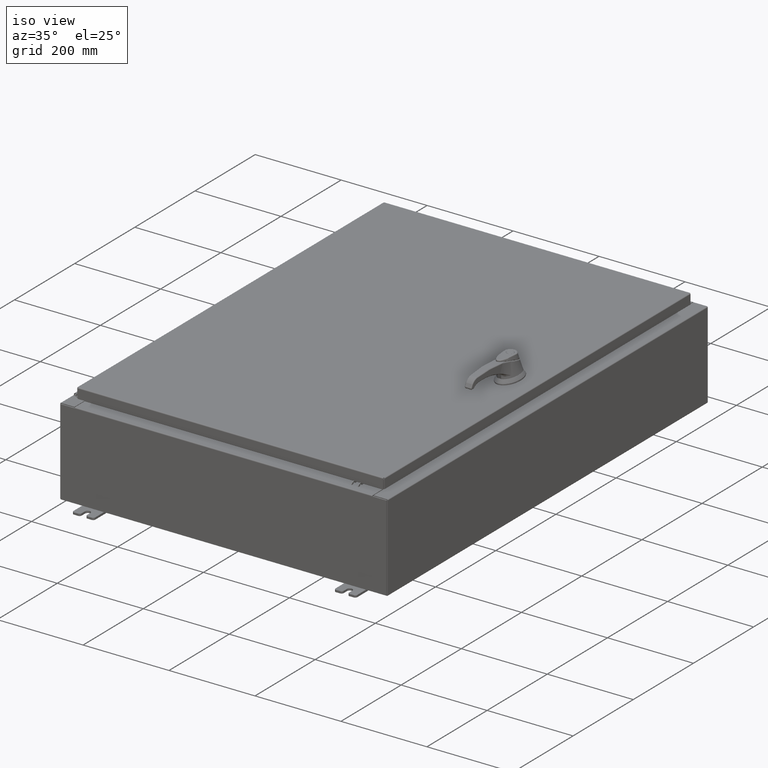
[diagram: clean part render]
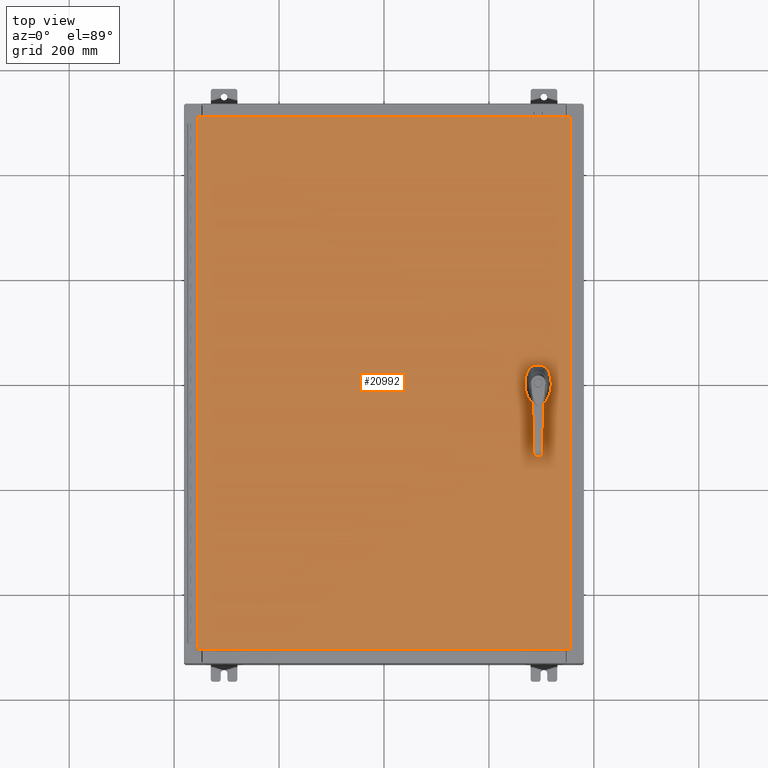
[diagram: tour spotlight — one face highlighted and labeled with its STEP entity id]
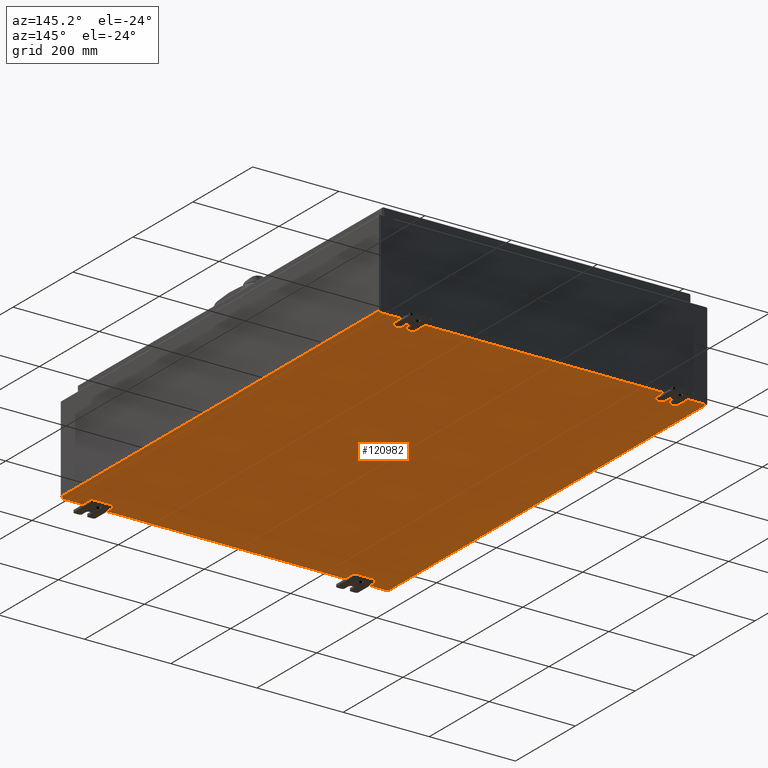
[diagram: tour spotlight — one face highlighted and labeled with its STEP entity id]
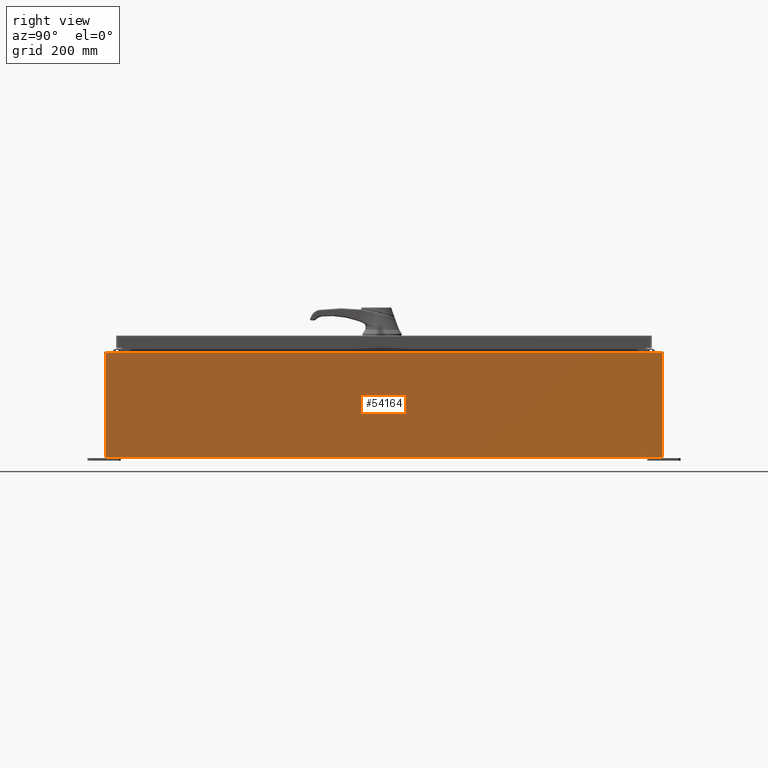
[diagram: tour spotlight — one face highlighted and labeled with its STEP entity id]
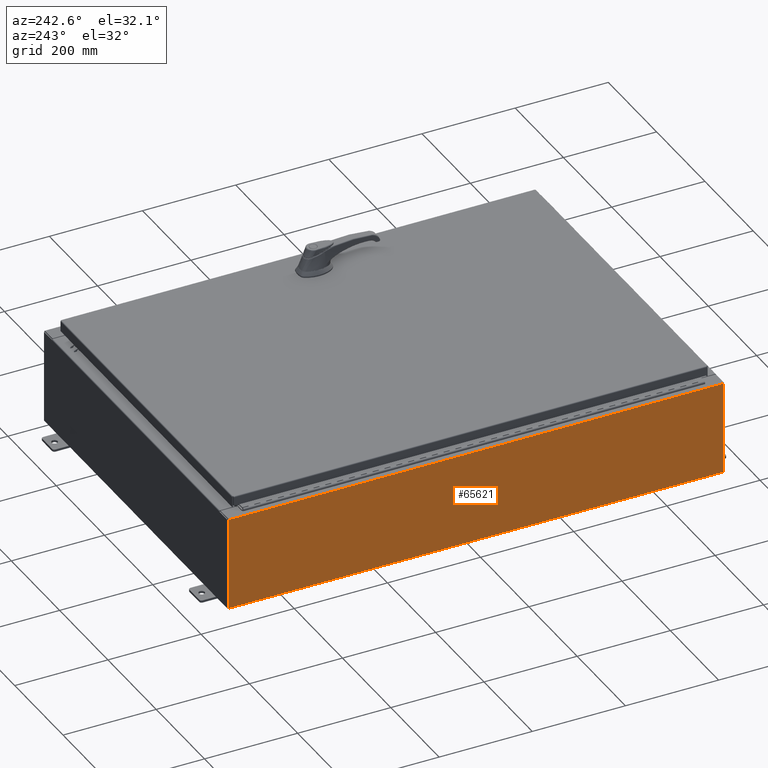
[diagram: tour spotlight — one face highlighted and labeled with its STEP entity id]
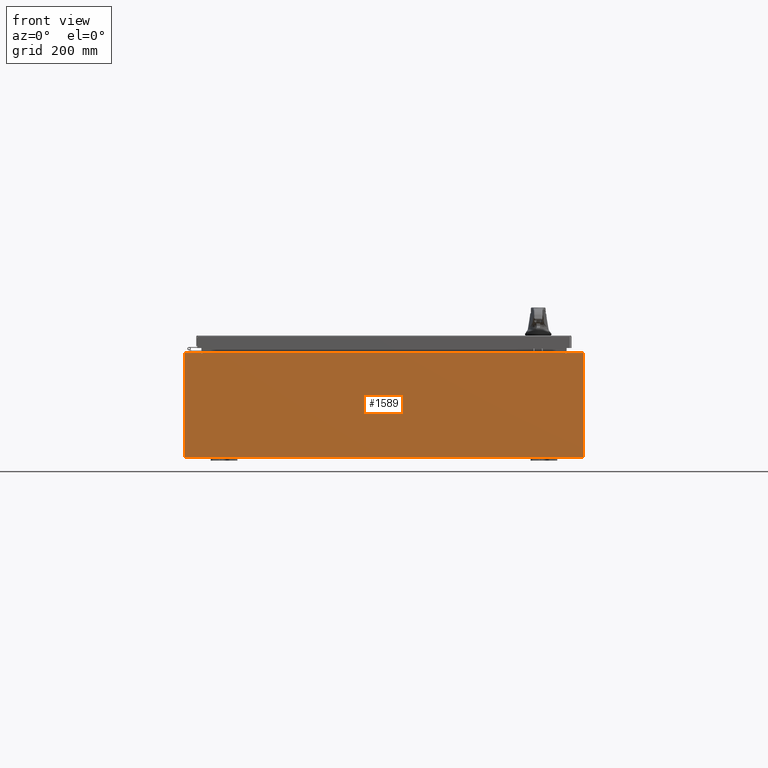
[diagram: tour spotlight — one face highlighted and labeled with its STEP entity id]
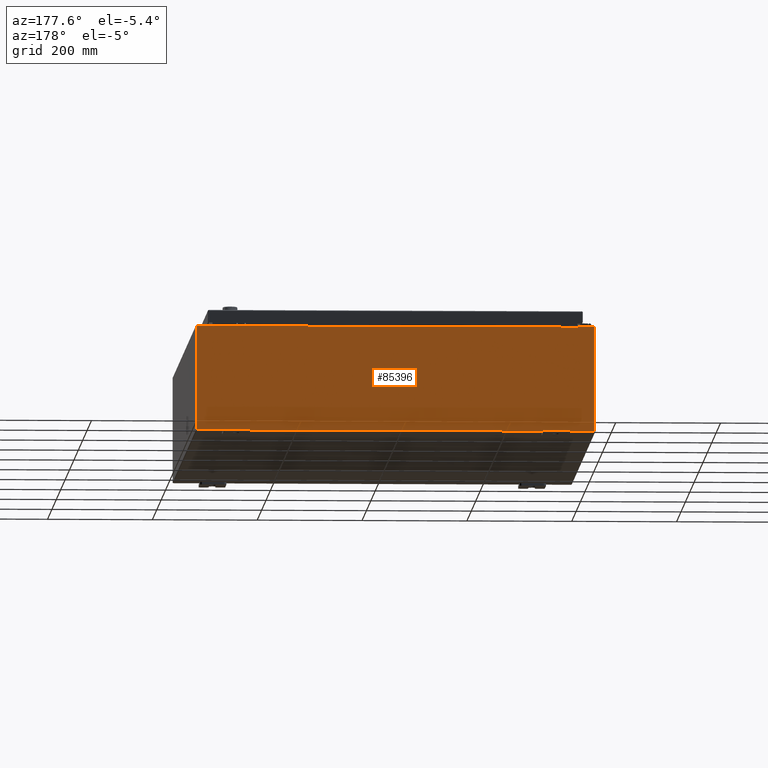
[diagram: tour spotlight — one face highlighted and labeled with its STEP entity id]
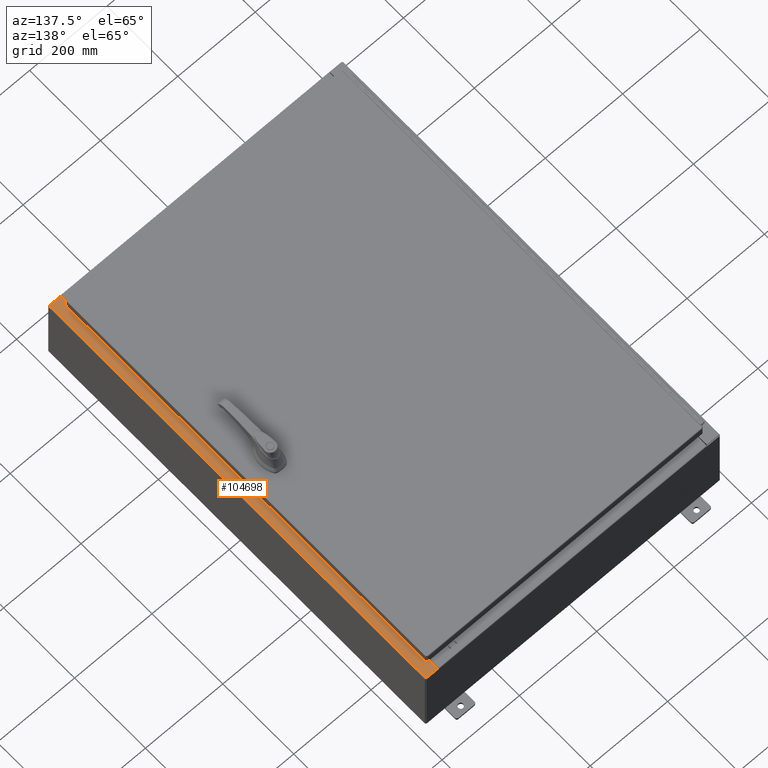
[diagram: tour spotlight — one face highlighted and labeled with its STEP entity id]
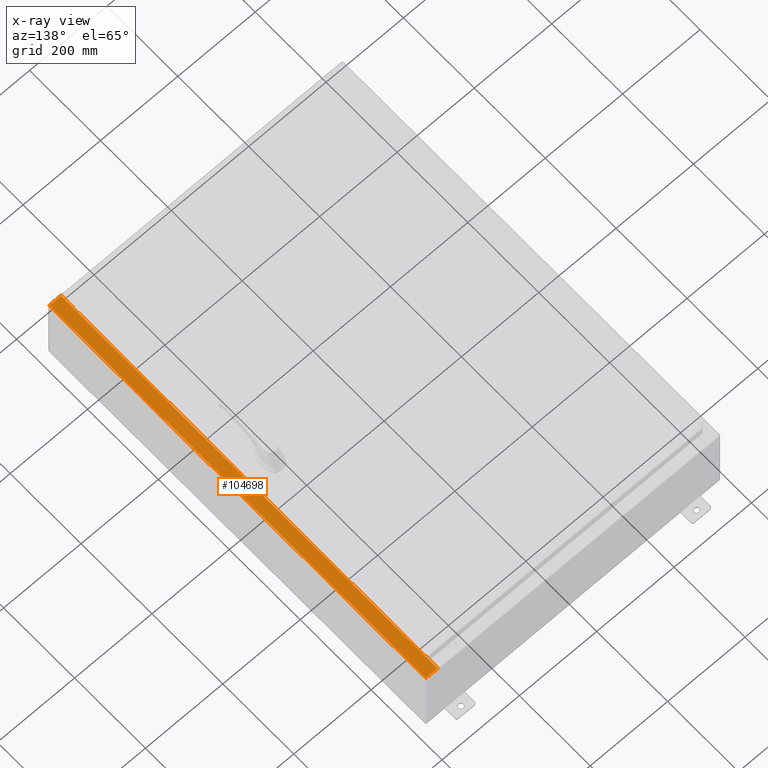
[diagram: x-ray of the same camera — body ghosted, this tour face saturated]
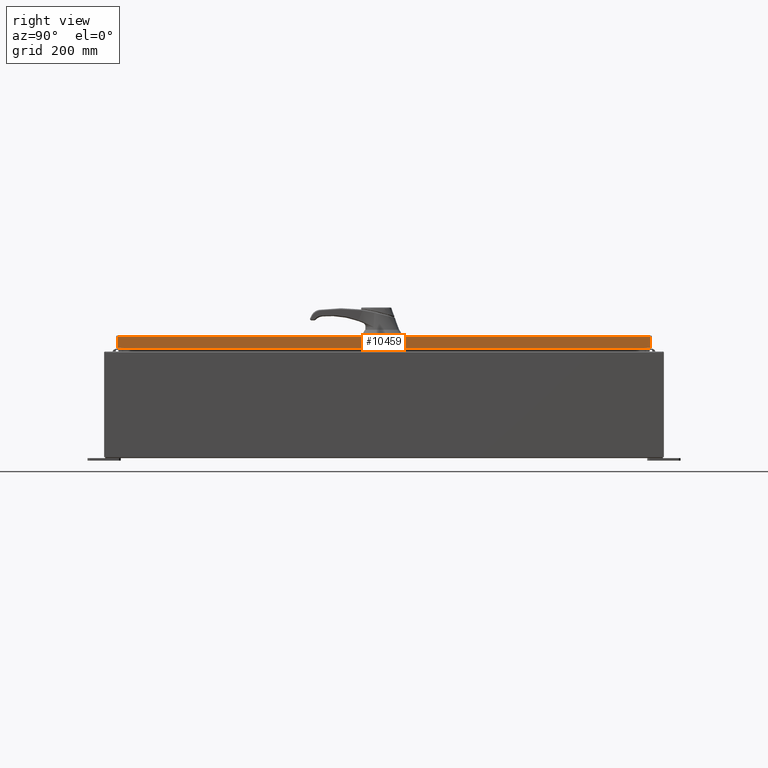
[diagram: tour spotlight — one face highlighted and labeled with its STEP entity id]
A machine part: a face-by-face anatomy tour. The part has 3038 B-rep faces; the first image is the clean iso view, then the 8 largest visible faces are spotlighted one at a time (largest first), each with its STEP entity span.

Face 1 — top view, entity #20992. In plain terms, the highlighted planar face has unit normal (0, 0, -1).
Definition (entity closure, byte-faithful):
#713 = VECTOR ( 'NONE', #93508, 39.37007874015748100 ) ;
#1416 = LINE ( 'NONE', #23178, #80802 ) ;
#4065 = CARTESIAN_POINT ( 'NONE',  ( 11.17500000000007500, 0.0000000000000000000, 0.0000000000000000000 ) ) ;
#5549 = ORIENTED_EDGE ( 'NONE', *, *, #27456, .T. ) ;
#6065 = CARTESIAN_POINT ( 'NONE',  ( 11.57800000000000100, -1.338000000000000100, 0.0000000000000000000 ) ) ;
#9464 = CARTESIAN_POINT ( 'NONE',  ( 13.99030000000000100, 20.00630000000000700, 1.946441695485787500E-015 ) ) ;
#10059 = EDGE_CURVE ( 'NONE', #40510, #10785, #1416, .T. ) ;
#10197 = ORIENTED_EDGE ( 'NONE', *, *, #92393, .F. ) ;
#10240 = DIRECTION ( 'NONE',  ( -0.0000000000000000000, 0.0000000000000000000, 1.000000000000000000 ) ) ;
#10785 = VERTEX_POINT ( 'NONE', #68067 ) ;
#10881 = CARTESIAN_POINT ( 'NONE',  ( 11.74950000000000300, -1.338000000000000100, 0.0000000000000000000 ) ) ;
#11727 = ORIENTED_EDGE ( 'NONE', *, *, #112714, .F. ) ;
#13587 = CARTESIAN_POINT ( 'NONE',  ( 11.17500000000007500, 0.2002273707563079800, 0.0000000000000000000 ) ) ;
#13602 = CARTESIAN_POINT ( 'NONE',  ( 11.57800000000000100, 0.0000000000000000000, 0.0000000000000000000 ) ) ;
#14846 = ORIENTED_EDGE ( 'NONE', *, *, #34380, .T. ) ;
#16079 = DIRECTION ( 'NONE',  ( 1.000000000000000000, 0.0000000000000000000, 0.0000000000000000000 ) ) ;
#17388 = VERTEX_POINT ( 'NONE', #49602 ) ;
#18211 = CARTESIAN_POINT ( 'NONE',  ( 11.37777262924369200, -0.4029999999999252000, 0.0000000000000000000 ) ) ;
#18451 = AXIS2_PLACEMENT_3D ( 'NONE', #13602, #83114, #23724 ) ;
#18954 = CARTESIAN_POINT ( 'NONE',  ( 11.98099999999993100, -0.2002273707563079800, 0.0000000000000000000 ) ) ;
#19039 = VERTEX_POINT ( 'NONE', #33135 ) ;
#20043 = LINE ( 'NONE', #81543, #49696 ) ;
#20165 = ORIENTED_EDGE ( 'NONE', *, *, #52635, .F. ) ;
#20211 = ORIENTED_EDGE ( 'NONE', *, *, #37385, .F. ) ;
#20380 = VERTEX_POINT ( 'NONE', #75636 ) ;
#20992 = ADVANCED_FACE ( 'NONE', ( #22618, #125000, #72299 ), #49393, .F. ) ;
#22112 = DIRECTION ( 'NONE',  ( 0.0000000000000000000, 1.000000000000000000, 0.0000000000000000000 ) ) ;
#22618 = FACE_BOUND ( 'NONE', #94614, .T. ) ;
#23178 = CARTESIAN_POINT ( 'NONE',  ( 0.0000000000000000000, 0.4029999999999252000, 0.0000000000000000000 ) ) ;
#23724 = DIRECTION ( 'NONE',  ( 1.000000000000000000, 0.0000000000000000000, 0.0000000000000000000 ) ) ;
#26070 = CIRCLE ( 'NONE', #82155, 0.1715000000000011500 ) ;
#26480 = ORIENTED_EDGE ( 'NONE', *, *, #37617, .F. ) ;
#27418 = EDGE_LOOP ( 'NONE', ( #5549, #43140, #84448, #20165, #26480, #10197, #62876, #20211 ) ) ;
#27456 = EDGE_CURVE ( 'NONE', #79555, #110515, #59068, .T. ) ;
#29096 = CIRCLE ( 'NONE', #113686, 0.4499999999999168000 ) ;
#29190 = CARTESIAN_POINT ( 'NONE',  ( 11.98099999999992900, 6.538620706741755000E-014, 0.0000000000000000000 ) ) ;
#29546 = VERTEX_POINT ( 'NONE', #13587 ) ;
#29744 = VERTEX_POINT ( 'NONE', #10881 ) ;
#29772 = CARTESIAN_POINT ( 'NONE',  ( 13.99030000000000100, -20.00630000000000300, -2.048885995248197400E-016 ) ) ;
#30443 = CARTESIAN_POINT ( 'NONE',  ( 11.57800000000000100, 0.0000000000000000000, 0.0000000000000000000 ) ) ;
#30903 = LINE ( 'NONE', #121697, #80479 ) ;
#33135 = CARTESIAN_POINT ( 'NONE',  ( -13.99029999999999800, -20.00630000000001000, 1.946441695485787500E-015 ) ) ;
#33560 = DIRECTION ( 'NONE',  ( -0.0000000000000000000, 0.0000000000000000000, 1.000000000000000000 ) ) ;
#34380 = EDGE_CURVE ( 'NONE', #56203, #20380, #20043, .T. ) ;
#36805 = VERTEX_POINT ( 'NONE', #110417 ) ;
#37385 = EDGE_CURVE ( 'NONE', #79555, #40510, #95541, .T. ) ;
#37617 = EDGE_CURVE ( 'NONE', #29546, #100435, #53799, .T. ) ;
#39242 = CARTESIAN_POINT ( 'NONE',  ( 11.77822737075631200, 0.4029999999999252000, 0.0000000000000000000 ) ) ;
#40414 = DIRECTION ( 'NONE',  ( 1.000000000000000000, 0.0000000000000000000, 0.0000000000000000000 ) ) ;
#40510 = VERTEX_POINT ( 'NONE', #39242 ) ;
#43140 = ORIENTED_EDGE ( 'NONE', *, *, #110619, .F. ) ;
#43217 = DIRECTION ( 'NONE',  ( -1.000000000000000000, 0.0000000000000000000, 0.0000000000000000000 ) ) ;
#43713 = VERTEX_POINT ( 'NONE', #89410 ) ;
#43994 = EDGE_LOOP ( 'NONE', ( #81127, #14846, #80909, #101770 ) ) ;
#45375 = VECTOR ( 'NONE', #59518, 39.37007874015748100 ) ;
#48132 = AXIS2_PLACEMENT_3D ( 'NONE', #69831, #10240, #79785 ) ;
#49393 = PLANE ( 'NONE',  #51897 ) ;
#49602 = CARTESIAN_POINT ( 'NONE',  ( -13.99029999999999800, 20.00630000000000000, -2.048885995248197400E-016 ) ) ;
#49696 = VECTOR ( 'NONE', #22112, 39.37007874015748100 ) ;
#51897 = AXIS2_PLACEMENT_3D ( 'NONE', #98636, #59339, #128620 ) ;
#52635 = EDGE_CURVE ( 'NONE', #100435, #54347, #29096, .T. ) ;
#53799 = LINE ( 'NONE', #4065, #713 ) ;
#54347 = VERTEX_POINT ( 'NONE', #18211 ) ;
#54647 = DIRECTION ( 'NONE',  ( -0.0000000000000000000, 0.0000000000000000000, 1.000000000000000000 ) ) ;
#54681 = DIRECTION ( 'NONE',  ( 1.000000000000000000, -0.0000000000000000000, -0.0000000000000000000 ) ) ;
#56203 = VERTEX_POINT ( 'NONE', #29772 ) ;
#57278 = EDGE_CURVE ( 'NONE', #19039, #56203, #59484, .T. ) ;
#59068 = LINE ( 'NONE', #29190, #108549 ) ;
#59105 = DIRECTION ( 'NONE',  ( 5.457491617345625800E-015, -1.000000000000000000, 0.0000000000000000000 ) ) ;
#59339 = DIRECTION ( 'NONE',  ( 0.0000000000000000000, 0.0000000000000000000, -1.000000000000000000 ) ) ;
#59484 = LINE ( 'NONE', #103953, #108996 ) ;
#59518 = DIRECTION ( 'NONE',  ( -1.000000000000000000, -0.0000000000000000000, -0.0000000000000000000 ) ) ;
#62876 = ORIENTED_EDGE ( 'NONE', *, *, #10059, .F. ) ;
#68067 = CARTESIAN_POINT ( 'NONE',  ( 11.37777262924369200, 0.4029999999999252000, 0.0000000000000000000 ) ) ;
#69831 = CARTESIAN_POINT ( 'NONE',  ( 11.57800000000000100, 0.0000000000000000000, 0.0000000000000000000 ) ) ;
#71305 = CIRCLE ( 'NONE', #98023, 0.4499999999999168000 ) ;
#71669 = LINE ( 'NONE', #9464, #45375 ) ;
#72299 = FACE_BOUND ( 'NONE', #27418, .T. ) ;
#75604 = DIRECTION ( 'NONE',  ( -0.0000000000000000000, 0.0000000000000000000, 1.000000000000000000 ) ) ;
#75636 = CARTESIAN_POINT ( 'NONE',  ( 13.99030000000000100, 20.00630000000000700, 1.946441695485787500E-015 ) ) ;
#79555 = VERTEX_POINT ( 'NONE', #102981 ) ;
#79785 = DIRECTION ( 'NONE',  ( 1.000000000000000000, 0.0000000000000000000, 0.0000000000000000000 ) ) ;
#80479 = VECTOR ( 'NONE', #92194, 39.37007874015748100 ) ;
#80802 = VECTOR ( 'NONE', #43217, 39.37007874015748100 ) ;
#80909 = ORIENTED_EDGE ( 'NONE', *, *, #89678, .T. ) ;
#81127 = ORIENTED_EDGE ( 'NONE', *, *, #57278, .T. ) ;
#81543 = CARTESIAN_POINT ( 'NONE',  ( 13.99030000000000100, -20.00630000000000300, -2.048885995248197400E-016 ) ) ;
#82155 = AXIS2_PLACEMENT_3D ( 'NONE', #6065, #75604, #16079 ) ;
#83114 = DIRECTION ( 'NONE',  ( -0.0000000000000000000, 0.0000000000000000000, 1.000000000000000000 ) ) ;
#84448 = ORIENTED_EDGE ( 'NONE', *, *, #121474, .F. ) ;
#89410 = CARTESIAN_POINT ( 'NONE',  ( 11.77822737075631200, -0.4029999999999252000, 0.0000000000000000000 ) ) ;
#89656 = CIRCLE ( 'NONE', #101609, 0.1715000000000011500 ) ;
#89678 = EDGE_CURVE ( 'NONE', #20380, #17388, #71669, .T. ) ;
#91428 = ORIENTED_EDGE ( 'NONE', *, *, #121913, .F. ) ;
#92194 = DIRECTION ( 'NONE',  ( 1.000000000000000000, 0.0000000000000000000, 0.0000000000000000000 ) ) ;
#92393 = EDGE_CURVE ( 'NONE', #10785, #29546, #71305, .T. ) ;
#92799 = CARTESIAN_POINT ( 'NONE',  ( 11.57800000000000100, -1.338000000000000100, 0.0000000000000000000 ) ) ;
#93508 = DIRECTION ( 'NONE',  ( 0.0000000000000000000, -1.000000000000000000, 0.0000000000000000000 ) ) ;
#94614 = EDGE_LOOP ( 'NONE', ( #91428, #11727 ) ) ;
#95541 = CIRCLE ( 'NONE', #48132, 0.4499999999999168000 ) ;
#97161 = VECTOR ( 'NONE', #106594, 39.37007874015748100 ) ;
#98023 = AXIS2_PLACEMENT_3D ( 'NONE', #30443, #99627, #40414 ) ;
#98636 = CARTESIAN_POINT ( 'NONE',  ( 0.0000000000000000000, 0.0000000000000000000, 0.0000000000000000000 ) ) ;
#99627 = DIRECTION ( 'NONE',  ( -0.0000000000000000000, 0.0000000000000000000, 1.000000000000000000 ) ) ;
#100435 = VERTEX_POINT ( 'NONE', #104602 ) ;
#101609 = AXIS2_PLACEMENT_3D ( 'NONE', #92799, #33560, #102710 ) ;
#101770 = ORIENTED_EDGE ( 'NONE', *, *, #108238, .T. ) ;
#102710 = DIRECTION ( 'NONE',  ( 1.000000000000000000, 0.0000000000000000000, 0.0000000000000000000 ) ) ;
#102981 = CARTESIAN_POINT ( 'NONE',  ( 11.98099999999992900, 0.2002273707563075900, 0.0000000000000000000 ) ) ;
#103953 = CARTESIAN_POINT ( 'NONE',  ( -13.99029999999999800, -20.00630000000001000, 1.946441695485787500E-015 ) ) ;
#104602 = CARTESIAN_POINT ( 'NONE',  ( 11.17500000000007500, -0.2002273707563079800, 0.0000000000000000000 ) ) ;
#106594 = DIRECTION ( 'NONE',  ( 0.0000000000000000000, -1.000000000000000000, 0.0000000000000000000 ) ) ;
#108238 = EDGE_CURVE ( 'NONE', #17388, #19039, #120545, .T. ) ;
#108549 = VECTOR ( 'NONE', #59105, 39.37007874015748100 ) ;
#108996 = VECTOR ( 'NONE', #54681, 39.37007874015748100 ) ;
#110417 = CARTESIAN_POINT ( 'NONE',  ( 11.40650000000000100, -1.338000000000000100, 0.0000000000000000000 ) ) ;
#110515 = VERTEX_POINT ( 'NONE', #18954 ) ;
#110619 = EDGE_CURVE ( 'NONE', #43713, #110515, #126348, .T. ) ;
#112714 = EDGE_CURVE ( 'NONE', #36805, #29744, #89656, .T. ) ;
#113686 = AXIS2_PLACEMENT_3D ( 'NONE', #113936, #54647, #123919 ) ;
#113936 = CARTESIAN_POINT ( 'NONE',  ( 11.57800000000000100, 0.0000000000000000000, 0.0000000000000000000 ) ) ;
#120545 = LINE ( 'NONE', #126197, #97161 ) ;
#121474 = EDGE_CURVE ( 'NONE', #54347, #43713, #30903, .T. ) ;
#121697 = CARTESIAN_POINT ( 'NONE',  ( 0.0000000000000000000, -0.4029999999999252000, 0.0000000000000000000 ) ) ;
#121913 = EDGE_CURVE ( 'NONE', #29744, #36805, #26070, .T. ) ;
#123919 = DIRECTION ( 'NONE',  ( 1.000000000000000000, 0.0000000000000000000, 0.0000000000000000000 ) ) ;
#125000 = FACE_OUTER_BOUND ( 'NONE', #43994, .T. ) ;
#126197 = CARTESIAN_POINT ( 'NONE',  ( -13.99029999999999800, 20.00630000000000300, -2.048885995248197400E-016 ) ) ;
#126348 = CIRCLE ( 'NONE', #18451, 0.4499999999999168000 ) ;
#128620 = DIRECTION ( 'NONE',  ( -1.000000000000000000, 0.0000000000000000000, -0.0000000000000000000 ) ) ;

Face 2 — auxiliary view, entity #120982. In plain terms, the highlighted planar face has unit normal (0, 0, -1).
Definition (entity closure, byte-faithful):
#6310 = DIRECTION ( 'NONE',  ( -1.000000000000000000, 0.0000000000000000000, -0.0000000000000000000 ) ) ;
#6561 = LINE ( 'NONE', #115595, #59569 ) ;
#19580 = VECTOR ( 'NONE', #67871, 39.37007874015748100 ) ;
#21878 = EDGE_LOOP ( 'NONE', ( #64592, #79471, #118921, #54975 ) ) ;
#31516 = CARTESIAN_POINT ( 'NONE',  ( 14.91230000000000200, -20.92529999999999600, -0.07470000000000000300 ) ) ;
#33068 = VERTEX_POINT ( 'NONE', #118293 ) ;
#36048 = DIRECTION ( 'NONE',  ( 0.0000000000000000000, 0.0000000000000000000, -1.000000000000000000 ) ) ;
#36695 = LINE ( 'NONE', #119528, #112614 ) ;
#39096 = CARTESIAN_POINT ( 'NONE',  ( -14.91229999999999800, -20.92529999999998600, -0.07469999999999994700 ) ) ;
#46342 = DIRECTION ( 'NONE',  ( -0.0000000000000000000, -1.000000000000000000, -8.208677865577646300E-017 ) ) ;
#47252 = AXIS2_PLACEMENT_3D ( 'NONE', #115295, #36048, #6310 ) ;
#54975 = ORIENTED_EDGE ( 'NONE', *, *, #85873, .T. ) ;
#55715 = FACE_OUTER_BOUND ( 'NONE', #21878, .T. ) ;
#57431 = EDGE_CURVE ( 'NONE', #75915, #115806, #126064, .T. ) ;
#59569 = VECTOR ( 'NONE', #46342, 39.37007874015748100 ) ;
#64592 = ORIENTED_EDGE ( 'NONE', *, *, #57431, .F. ) ;
#67871 = DIRECTION ( 'NONE',  ( -1.000000000000000000, -0.0000000000000000000, -0.0000000000000000000 ) ) ;
#72413 = LINE ( 'NONE', #127244, #19580 ) ;
#75915 = VERTEX_POINT ( 'NONE', #39096 ) ;
#79471 = ORIENTED_EDGE ( 'NONE', *, *, #123659, .T. ) ;
#80110 = DIRECTION ( 'NONE',  ( -0.0000000000000000000, 1.000000000000000000, -0.0000000000000000000 ) ) ;
#84767 = CARTESIAN_POINT ( 'NONE',  ( -14.91229999999999800, 20.92530000000000700, -0.07470000000000000300 ) ) ;
#85762 = DIRECTION ( 'NONE',  ( 1.000000000000000000, -1.456985596620940400E-016, 0.0000000000000000000 ) ) ;
#85873 = EDGE_CURVE ( 'NONE', #33068, #115806, #6561, .T. ) ;
#99637 = VECTOR ( 'NONE', #85762, 39.37007874015748100 ) ;
#112614 = VECTOR ( 'NONE', #80110, 39.37007874015748100 ) ;
#114100 = VERTEX_POINT ( 'NONE', #84767 ) ;
#115295 = CARTESIAN_POINT ( 'NONE',  ( 0.0000000000000000000, 0.0000000000000000000, -0.07470000000000000300 ) ) ;
#115487 = EDGE_CURVE ( 'NONE', #33068, #114100, #72413, .T. ) ;
#115595 = CARTESIAN_POINT ( 'NONE',  ( 14.91230000000000200, 20.92529999999999600, -0.07469999999999714400 ) ) ;
#115806 = VERTEX_POINT ( 'NONE', #31516 ) ;
#118293 = CARTESIAN_POINT ( 'NONE',  ( 14.91230000000000200, 20.92529999999999300, -0.07469999999999714400 ) ) ;
#118921 = ORIENTED_EDGE ( 'NONE', *, *, #115487, .F. ) ;
#119528 = CARTESIAN_POINT ( 'NONE',  ( -14.91229999999999800, -20.92529999999998900, -0.07469999999999994700 ) ) ;
#120982 = ADVANCED_FACE ( 'NONE', ( #55715 ), #125255, .T. ) ;
#123659 = EDGE_CURVE ( 'NONE', #75915, #114100, #36695, .T. ) ;
#125231 = CARTESIAN_POINT ( 'NONE',  ( -14.99999999999999800, -20.92529999999999300, -0.07470000000000000300 ) ) ;
#125255 = PLANE ( 'NONE',  #47252 ) ;
#126064 = LINE ( 'NONE', #125231, #99637 ) ;
#127244 = CARTESIAN_POINT ( 'NONE',  ( -14.99999999999999800, 20.92530000000000700, -0.07470000000000000300 ) ) ;

Face 3 — right view, entity #54164. In plain terms, the highlighted planar face has unit normal (-1, 0, 0).
Definition (entity closure, byte-faithful):
#5526 = CARTESIAN_POINT ( 'NONE',  ( 15.00000000000000400, -20.92529999999998900, 0.01299999999999920500 ) ) ;
#7124 = CARTESIAN_POINT ( 'NONE',  ( 15.00000000000003200, 20.92529999999998900, 7.837599999999999200 ) ) ;
#8816 = VECTOR ( 'NONE', #56535, 39.37007874015748100 ) ;
#10636 = VERTEX_POINT ( 'NONE', #5526 ) ;
#12332 = EDGE_LOOP ( 'NONE', ( #33307, #27964, #76011, #28155 ) ) ;
#12495 = CARTESIAN_POINT ( 'NONE',  ( 15.00000000000000400, -20.92529999999998900, 0.01299999999999984700 ) ) ;
#16761 = CARTESIAN_POINT ( 'NONE',  ( 15.00000000000000400, 20.92529999999999300, 0.01300000000000203200 ) ) ;
#18123 = VECTOR ( 'NONE', #66684, 39.37007874015748100 ) ;
#23183 = EDGE_CURVE ( 'NONE', #67547, #10636, #73675, .T. ) ;
#24011 = PLANE ( 'NONE',  #77273 ) ;
#27964 = ORIENTED_EDGE ( 'NONE', *, *, #94319, .T. ) ;
#28155 = ORIENTED_EDGE ( 'NONE', *, *, #108779, .T. ) ;
#30473 = CARTESIAN_POINT ( 'NONE',  ( 15.00000000000000400, 20.92529999999999600, -5.403395625144963300E-014 ) ) ;
#31827 = DIRECTION ( 'NONE',  ( -1.872056655020411900E-031, -1.000000000000000000, -5.222095728451712300E-017 ) ) ;
#33307 = ORIENTED_EDGE ( 'NONE', *, *, #44581, .T. ) ;
#34090 = DIRECTION ( 'NONE',  ( -1.000000000000000000, 0.0000000000000000000, 3.584876173029202900E-015 ) ) ;
#38527 = LINE ( 'NONE', #95866, #8816 ) ;
#41336 = FACE_OUTER_BOUND ( 'NONE', #12332, .T. ) ;
#44581 = EDGE_CURVE ( 'NONE', #126143, #119961, #47793, .T. ) ;
#47374 = VECTOR ( 'NONE', #31827, 39.37007874015748100 ) ;
#47793 = LINE ( 'NONE', #7124, #18123 ) ;
#54164 = ADVANCED_FACE ( 'NONE', ( #41336 ), #24011, .F. ) ;
#56535 = DIRECTION ( 'NONE',  ( -3.584876173029202900E-015, 0.0000000000000000000, -1.000000000000000000 ) ) ;
#61153 = CARTESIAN_POINT ( 'NONE',  ( 15.00000000000003200, 20.92529999999998600, 7.837599999999999200 ) ) ;
#63102 = LINE ( 'NONE', #30473, #92512 ) ;
#63514 = CARTESIAN_POINT ( 'NONE',  ( 15.00000000000000400, 0.0000000000000000000, -5.403395625144963300E-014 ) ) ;
#66684 = DIRECTION ( 'NONE',  ( -0.0000000000000000000, -1.000000000000000000, -0.0000000000000000000 ) ) ;
#67547 = VERTEX_POINT ( 'NONE', #16761 ) ;
#73675 = LINE ( 'NONE', #12495, #47374 ) ;
#76011 = ORIENTED_EDGE ( 'NONE', *, *, #23183, .F. ) ;
#77273 = AXIS2_PLACEMENT_3D ( 'NONE', #63514, #34090, #103255 ) ;
#92512 = VECTOR ( 'NONE', #119263, 39.37007874015748100 ) ;
#94319 = EDGE_CURVE ( 'NONE', #119961, #10636, #38527, .T. ) ;
#95866 = CARTESIAN_POINT ( 'NONE',  ( 15.00000000000000400, -20.92529999999998900, -5.403395625144963300E-014 ) ) ;
#98492 = CARTESIAN_POINT ( 'NONE',  ( 15.00000000000003200, -20.92529999999998900, 7.837599999999999200 ) ) ;
#103255 = DIRECTION ( 'NONE',  ( 3.584876173029202900E-015, 0.0000000000000000000, 1.000000000000000000 ) ) ;
#108779 = EDGE_CURVE ( 'NONE', #67547, #126143, #63102, .T. ) ;
#119263 = DIRECTION ( 'NONE',  ( 3.584876173029202900E-015, 0.0000000000000000000, 1.000000000000000000 ) ) ;
#119961 = VERTEX_POINT ( 'NONE', #98492 ) ;
#126143 = VERTEX_POINT ( 'NONE', #61153 ) ;

Face 4 — auxiliary view, entity #65621. In plain terms, the highlighted planar face has unit normal (1, 0, 0).
Definition (entity closure, byte-faithful):
#2301 = CARTESIAN_POINT ( 'NONE',  ( -14.99999999999999800, -20.92529999999998600, 0.01299999999999984700 ) ) ;
#3256 = ORIENTED_EDGE ( 'NONE', *, *, #64699, .F. ) ;
#6022 = VECTOR ( 'NONE', #67530, 39.37007874015748100 ) ;
#8264 = VECTOR ( 'NONE', #77882, 39.37007874015748100 ) ;
#21747 = DIRECTION ( 'NONE',  ( -3.584876173029202900E-015, 0.0000000000000000000, 1.000000000000000000 ) ) ;
#30991 = CARTESIAN_POINT ( 'NONE',  ( -14.99999999999999800, 20.92530000000000700, 0.01299999999999983600 ) ) ;
#31523 = CARTESIAN_POINT ( 'NONE',  ( -15.00000000000002700, -20.92529999999998600, 7.837599999999999200 ) ) ;
#38849 = DIRECTION ( 'NONE',  ( 1.000000000000000000, 0.0000000000000000000, 3.584876173029202900E-015 ) ) ;
#39777 = AXIS2_PLACEMENT_3D ( 'NONE', #78235, #38849, #108031 ) ;
#48924 = EDGE_CURVE ( 'NONE', #80094, #56911, #107577, .T. ) ;
#51381 = ORIENTED_EDGE ( 'NONE', *, *, #91207, .T. ) ;
#53306 = CARTESIAN_POINT ( 'NONE',  ( -14.99999999999999800, 20.92530000000000700, -5.403395625144962100E-014 ) ) ;
#56911 = VERTEX_POINT ( 'NONE', #99266 ) ;
#64699 = EDGE_CURVE ( 'NONE', #69915, #99602, #85291, .T. ) ;
#65621 = ADVANCED_FACE ( 'NONE', ( #79027 ), #88156, .F. ) ;
#67530 = DIRECTION ( 'NONE',  ( -0.0000000000000000000, 1.000000000000000000, -0.0000000000000000000 ) ) ;
#69915 = VERTEX_POINT ( 'NONE', #2301 ) ;
#72668 = LINE ( 'NONE', #110595, #122288 ) ;
#77882 = DIRECTION ( 'NONE',  ( 0.0000000000000000000, 1.000000000000000000, 0.0000000000000000000 ) ) ;
#78235 = CARTESIAN_POINT ( 'NONE',  ( -14.99999999999999800, 0.0000000000000000000, -5.403395625144962100E-014 ) ) ;
#78920 = EDGE_CURVE ( 'NONE', #69915, #80094, #72668, .T. ) ;
#79027 = FACE_OUTER_BOUND ( 'NONE', #81440, .T. ) ;
#80094 = VERTEX_POINT ( 'NONE', #31523 ) ;
#81440 = EDGE_LOOP ( 'NONE', ( #91458, #51381, #3256, #96084 ) ) ;
#83850 = VECTOR ( 'NONE', #93049, 39.37007874015748100 ) ;
#85291 = LINE ( 'NONE', #126913, #6022 ) ;
#88156 = PLANE ( 'NONE',  #39777 ) ;
#91207 = EDGE_CURVE ( 'NONE', #56911, #99602, #110184, .T. ) ;
#91458 = ORIENTED_EDGE ( 'NONE', *, *, #48924, .T. ) ;
#93049 = DIRECTION ( 'NONE',  ( 3.584876173029202900E-015, 0.0000000000000000000, -1.000000000000000000 ) ) ;
#96084 = ORIENTED_EDGE ( 'NONE', *, *, #78920, .T. ) ;
#99266 = CARTESIAN_POINT ( 'NONE',  ( -15.00000000000002700, 20.92530000000000700, 7.837599999999999200 ) ) ;
#99602 = VERTEX_POINT ( 'NONE', #30991 ) ;
#107577 = LINE ( 'NONE', #127261, #8264 ) ;
#108031 = DIRECTION ( 'NONE',  ( 3.584876173029202900E-015, 0.0000000000000000000, -1.000000000000000000 ) ) ;
#110184 = LINE ( 'NONE', #53306, #83850 ) ;
#110595 = CARTESIAN_POINT ( 'NONE',  ( -14.99999999999999800, -20.92529999999999300, -5.403395625144962100E-014 ) ) ;
#122288 = VECTOR ( 'NONE', #21747, 39.37007874015748100 ) ;
#126913 = CARTESIAN_POINT ( 'NONE',  ( -14.99999999999999800, 20.92530000000000700, 0.01299999999999984700 ) ) ;
#127261 = CARTESIAN_POINT ( 'NONE',  ( -15.00000000000002700, -20.92529999999998900, 7.837599999999999200 ) ) ;

Face 5 — front view, entity #1589. In plain terms, the highlighted planar face has unit normal (-0, 1, -0).
Definition (entity closure, byte-faithful):
#146 = ORIENTED_EDGE ( 'NONE', *, *, #16823, .F. ) ;
#222 = EDGE_CURVE ( 'NONE', #83237, #48696, #57811, .T. ) ;
#1589 = ADVANCED_FACE ( 'NONE', ( #110243 ), #42282, .F. ) ;
#2261 = DIRECTION ( 'NONE',  ( -0.0000000000000000000, -0.0000000000000000000, 1.000000000000000000 ) ) ;
#4497 = CARTESIAN_POINT ( 'NONE',  ( -14.92529999999999800, 0.0000000000000000000, 3.925299999999999600 ) ) ;
#5940 = EDGE_CURVE ( 'NONE', #76997, #13630, #106313, .T. ) ;
#6844 = CARTESIAN_POINT ( 'NONE',  ( -13.63719999999999600, -0.0000000000000000000, 3.874949999999999700 ) ) ;
#6996 = LINE ( 'NONE', #12054, #27332 ) ;
#7097 = EDGE_CURVE ( 'NONE', #58100, #74185, #6996, .T. ) ;
#8176 = VECTOR ( 'NONE', #19986, 39.37007874015748100 ) ;
#8400 = EDGE_LOOP ( 'NONE', ( #58386, #74157, #146, #125388, #68211, #50117, #111817, #79828, #42161, #99966, #111042, #95076 ) ) ;
#9778 = DIRECTION ( 'NONE',  ( 1.000000000000000000, 0.0000000000000000000, 0.0000000000000000000 ) ) ;
#10535 = CARTESIAN_POINT ( 'NONE',  ( -13.67454999999999500, -0.0000000000000000000, 0.0000000000000000000 ) ) ;
#12054 = CARTESIAN_POINT ( 'NONE',  ( -14.92529999999999800, 0.0000000000000000000, 3.925299999999999600 ) ) ;
#13175 = VERTEX_POINT ( 'NONE', #117569 ) ;
#13630 = VERTEX_POINT ( 'NONE', #54686 ) ;
#16823 = EDGE_CURVE ( 'NONE', #76997, #75217, #33403, .T. ) ;
#19986 = DIRECTION ( 'NONE',  ( 0.0000000000000000000, 0.0000000000000000000, 1.000000000000000000 ) ) ;
#20052 = CARTESIAN_POINT ( 'NONE',  ( 13.63720000000000400, 0.0000000000000000000, 3.874949999999999700 ) ) ;
#20289 = CARTESIAN_POINT ( 'NONE',  ( 13.65587500000000200, 0.0000000000000000000, 3.874949999999999700 ) ) ;
#21172 = CIRCLE ( 'NONE', #90463, 0.01867499999999949400 ) ;
#23020 = EDGE_CURVE ( 'NONE', #114445, #13630, #87383, .T. ) ;
#25706 = CARTESIAN_POINT ( 'NONE',  ( -14.92529999999999800, 0.0000000000000000000, 3.925299999999999600 ) ) ;
#27018 = EDGE_CURVE ( 'NONE', #48696, #120927, #49898, .T. ) ;
#27332 = VECTOR ( 'NONE', #9778, 39.37007874015748100 ) ;
#30070 = DIRECTION ( 'NONE',  ( -4.340572780400004900E-014, 0.0000000000000000000, -1.000000000000000000 ) ) ;
#30411 = DIRECTION ( 'NONE',  ( 0.0000000000000000000, 0.0000000000000000000, -1.000000000000000000 ) ) ;
#32571 = CARTESIAN_POINT ( 'NONE',  ( -14.92529999999999800, 0.0000000000000000000, -3.925299999999999600 ) ) ;
#33403 = LINE ( 'NONE', #128539, #109246 ) ;
#36068 = AXIS2_PLACEMENT_3D ( 'NONE', #20289, #89728, #30411 ) ;
#36299 = CARTESIAN_POINT ( 'NONE',  ( 13.67455000000000400, 0.0000000000000000000, 3.925299999999999600 ) ) ;
#40057 = CARTESIAN_POINT ( 'NONE',  ( 13.67454999999983300, -0.0000000000000000000, -5.935537951421816200E-013 ) ) ;
#41422 = DIRECTION ( 'NONE',  ( 0.0000000000000000000, -1.000000000000000000, 0.0000000000000000000 ) ) ;
#41472 = CARTESIAN_POINT ( 'NONE',  ( -14.92529999999999800, 0.0000000000000000000, 3.925299999999999600 ) ) ;
#41561 = CARTESIAN_POINT ( 'NONE',  ( 14.92530000000000200, 0.0000000000000000000, 3.925299999999999600 ) ) ;
#42161 = ORIENTED_EDGE ( 'NONE', *, *, #126888, .T. ) ;
#42282 = PLANE ( 'NONE',  #43094 ) ;
#42516 = DIRECTION ( 'NONE',  ( -1.000000000000000000, -0.0000000000000000000, -0.0000000000000000000 ) ) ;
#43094 = AXIS2_PLACEMENT_3D ( 'NONE', #93822, #41422, #81140 ) ;
#48696 = VERTEX_POINT ( 'NONE', #4497 ) ;
#49306 = DIRECTION ( 'NONE',  ( 0.0000000000000000000, 0.0000000000000000000, -1.000000000000000000 ) ) ;
#49898 = LINE ( 'NONE', #41472, #69989 ) ;
#50063 = CARTESIAN_POINT ( 'NONE',  ( 13.63720000000000400, 0.0000000000000000000, 0.0000000000000000000 ) ) ;
#50117 = ORIENTED_EDGE ( 'NONE', *, *, #96272, .F. ) ;
#51226 = DIRECTION ( 'NONE',  ( 1.000000000000000000, 0.0000000000000000000, 0.0000000000000000000 ) ) ;
#51749 = VECTOR ( 'NONE', #42516, 39.37007874015748100 ) ;
#54686 = CARTESIAN_POINT ( 'NONE',  ( 13.63720000000000400, 0.0000000000000000000, 3.912299999999999700 ) ) ;
#57811 = LINE ( 'NONE', #25706, #110482 ) ;
#58100 = VERTEX_POINT ( 'NONE', #36299 ) ;
#58180 = CARTESIAN_POINT ( 'NONE',  ( -13.65587499999999600, 0.0000000000000000000, 3.874949999999999700 ) ) ;
#58386 = ORIENTED_EDGE ( 'NONE', *, *, #111944, .F. ) ;
#62611 = VECTOR ( 'NONE', #70109, 39.37007874015748100 ) ;
#62892 = CARTESIAN_POINT ( 'NONE',  ( -14.92529999999999800, 0.0000000000000000000, -3.925299999999999600 ) ) ;
#64987 = CARTESIAN_POINT ( 'NONE',  ( 14.92530000000000200, 0.0000000000000000000, 3.925299999999999600 ) ) ;
#65823 = LINE ( 'NONE', #64987, #89057 ) ;
#68107 = DIRECTION ( 'NONE',  ( 0.0000000000000000000, 0.0000000000000000000, -1.000000000000000000 ) ) ;
#68211 = ORIENTED_EDGE ( 'NONE', *, *, #23020, .F. ) ;
#69989 = VECTOR ( 'NONE', #71321, 39.37007874015748100 ) ;
#70109 = DIRECTION ( 'NONE',  ( 0.0000000000000000000, 0.0000000000000000000, 1.000000000000000000 ) ) ;
#71321 = DIRECTION ( 'NONE',  ( 1.000000000000000000, 0.0000000000000000000, 0.0000000000000000000 ) ) ;
#74157 = ORIENTED_EDGE ( 'NONE', *, *, #123091, .F. ) ;
#74185 = VERTEX_POINT ( 'NONE', #41561 ) ;
#74920 = DIRECTION ( 'NONE',  ( 0.0000000000000000000, 0.0000000000000000000, -1.000000000000000000 ) ) ;
#75217 = VERTEX_POINT ( 'NONE', #6844 ) ;
#76997 = VERTEX_POINT ( 'NONE', #77679 ) ;
#77679 = CARTESIAN_POINT ( 'NONE',  ( -13.63719999999999600, 1.024442997624098700E-016, 3.912299999999999700 ) ) ;
#79828 = ORIENTED_EDGE ( 'NONE', *, *, #7097, .T. ) ;
#80445 = EDGE_CURVE ( 'NONE', #58100, #13175, #120560, .T. ) ;
#81140 = DIRECTION ( 'NONE',  ( 0.0000000000000000000, -0.0000000000000000000, -1.000000000000000000 ) ) ;
#83237 = VERTEX_POINT ( 'NONE', #62892 ) ;
#84468 = CARTESIAN_POINT ( 'NONE',  ( 14.92530000000000200, 0.0000000000000000000, -3.925299999999999600 ) ) ;
#85788 = LINE ( 'NONE', #10535, #62611 ) ;
#86464 = EDGE_CURVE ( 'NONE', #117502, #83237, #104319, .T. ) ;
#87113 = CARTESIAN_POINT ( 'NONE',  ( -13.67454999999999500, 0.0000000000000000000, 3.874949999999999700 ) ) ;
#87383 = LINE ( 'NONE', #50063, #8176 ) ;
#87926 = CARTESIAN_POINT ( 'NONE',  ( -13.63719999999999800, 1.024442997624098700E-016, 3.912299999999999700 ) ) ;
#88532 = VERTEX_POINT ( 'NONE', #87113 ) ;
#89057 = VECTOR ( 'NONE', #74920, 39.37007874015748100 ) ;
#89728 = DIRECTION ( 'NONE',  ( -0.0000000000000000000, 1.000000000000000000, -0.0000000000000000000 ) ) ;
#90463 = AXIS2_PLACEMENT_3D ( 'NONE', #58180, #127480, #68107 ) ;
#93822 = CARTESIAN_POINT ( 'NONE',  ( 0.0000000000000000000, 0.0000000000000000000, 0.0000000000000000000 ) ) ;
#94097 = VECTOR ( 'NONE', #30070, 39.37007874015748100 ) ;
#95076 = ORIENTED_EDGE ( 'NONE', *, *, #27018, .T. ) ;
#96272 = EDGE_CURVE ( 'NONE', #13175, #114445, #113028, .T. ) ;
#99966 = ORIENTED_EDGE ( 'NONE', *, *, #86464, .T. ) ;
#104319 = LINE ( 'NONE', #32571, #51749 ) ;
#106313 = LINE ( 'NONE', #87926, #126537 ) ;
#109246 = VECTOR ( 'NONE', #49306, 39.37007874015748100 ) ;
#110243 = FACE_OUTER_BOUND ( 'NONE', #8400, .T. ) ;
#110482 = VECTOR ( 'NONE', #2261, 39.37007874015748100 ) ;
#111042 = ORIENTED_EDGE ( 'NONE', *, *, #222, .T. ) ;
#111817 = ORIENTED_EDGE ( 'NONE', *, *, #80445, .F. ) ;
#111944 = EDGE_CURVE ( 'NONE', #88532, #120927, #85788, .T. ) ;
#113028 = CIRCLE ( 'NONE', #36068, 0.01867499999999949400 ) ;
#114445 = VERTEX_POINT ( 'NONE', #20052 ) ;
#117502 = VERTEX_POINT ( 'NONE', #84468 ) ;
#117569 = CARTESIAN_POINT ( 'NONE',  ( 13.67455000000000200, 0.0000000000000000000, 3.874949999999999700 ) ) ;
#120560 = LINE ( 'NONE', #40057, #94097 ) ;
#120927 = VERTEX_POINT ( 'NONE', #124407 ) ;
#123091 = EDGE_CURVE ( 'NONE', #75217, #88532, #21172, .T. ) ;
#124407 = CARTESIAN_POINT ( 'NONE',  ( -13.67454999999999500, 0.0000000000000000000, 3.925299999999999600 ) ) ;
#125388 = ORIENTED_EDGE ( 'NONE', *, *, #5940, .T. ) ;
#126537 = VECTOR ( 'NONE', #51226, 39.37007874015748100 ) ;
#126888 = EDGE_CURVE ( 'NONE', #74185, #117502, #65823, .T. ) ;
#127480 = DIRECTION ( 'NONE',  ( -0.0000000000000000000, 1.000000000000000000, -0.0000000000000000000 ) ) ;
#128539 = CARTESIAN_POINT ( 'NONE',  ( -13.63719999999999600, -0.0000000000000000000, 0.0000000000000000000 ) ) ;

Face 6 — auxiliary view, entity #85396. In plain terms, the highlighted planar face has unit normal (0, -1, 0).
Definition (entity closure, byte-faithful):
#1125 = EDGE_CURVE ( 'NONE', #73937, #68447, #45302, .T. ) ;
#1840 = EDGE_CURVE ( 'NONE', #107760, #31565, #74589, .T. ) ;
#2242 = VECTOR ( 'NONE', #106081, 39.37007874015748100 ) ;
#2381 = ORIENTED_EDGE ( 'NONE', *, *, #12520, .F. ) ;
#3915 = DIRECTION ( 'NONE',  ( -0.0000000000000000000, -0.0000000000000000000, 1.000000000000000000 ) ) ;
#5428 = AXIS2_PLACEMENT_3D ( 'NONE', #101627, #46013, #121398 ) ;
#5850 = VERTEX_POINT ( 'NONE', #11213 ) ;
#6610 = ORIENTED_EDGE ( 'NONE', *, *, #1840, .T. ) ;
#6708 = CARTESIAN_POINT ( 'NONE',  ( -14.92529999999999800, 0.0000000000000000000, 3.925299999999999600 ) ) ;
#7369 = VECTOR ( 'NONE', #65646, 39.37007874015748100 ) ;
#8211 = FACE_OUTER_BOUND ( 'NONE', #38952, .T. ) ;
#9533 = ORIENTED_EDGE ( 'NONE', *, *, #127587, .T. ) ;
#10608 = LINE ( 'NONE', #66541, #109986 ) ;
#11213 = CARTESIAN_POINT ( 'NONE',  ( -13.67454999999999500, 0.0000000000000000000, 3.925299999999999600 ) ) ;
#11802 = CARTESIAN_POINT ( 'NONE',  ( -13.63719999999999600, -0.0000000000000000000, 3.874949999999999700 ) ) ;
#12065 = VERTEX_POINT ( 'NONE', #99313 ) ;
#12520 = EDGE_CURVE ( 'NONE', #72482, #84564, #10608, .T. ) ;
#14472 = VERTEX_POINT ( 'NONE', #41440 ) ;
#14869 = EDGE_CURVE ( 'NONE', #66686, #73937, #97112, .T. ) ;
#17116 = DIRECTION ( 'NONE',  ( 0.0000000000000000000, 0.0000000000000000000, 1.000000000000000000 ) ) ;
#18623 = VECTOR ( 'NONE', #111515, 39.37007874015748100 ) ;
#20584 = CARTESIAN_POINT ( 'NONE',  ( -13.63719999999999800, 1.024442997624098700E-016, 3.912299999999999700 ) ) ;
#21617 = CIRCLE ( 'NONE', #61198, 0.01867499999999949400 ) ;
#21672 = LINE ( 'NONE', #20584, #68209 ) ;
#22254 = LINE ( 'NONE', #83025, #124636 ) ;
#23535 = CARTESIAN_POINT ( 'NONE',  ( 13.67455000000000400, 0.0000000000000000000, 3.925299999999999600 ) ) ;
#25380 = VERTEX_POINT ( 'NONE', #124684 ) ;
#25618 = CARTESIAN_POINT ( 'NONE',  ( 13.63720000000000400, 0.0000000000000000000, 3.874949999999999700 ) ) ;
#28061 = EDGE_CURVE ( 'NONE', #72482, #12065, #21672, .T. ) ;
#29640 = DIRECTION ( 'NONE',  ( -0.0000000000000000000, 1.000000000000000000, -0.0000000000000000000 ) ) ;
#31565 = VERTEX_POINT ( 'NONE', #92152 ) ;
#31889 = CARTESIAN_POINT ( 'NONE',  ( 14.92530000000000200, 0.0000000000000000000, 3.925299999999999600 ) ) ;
#34005 = LINE ( 'NONE', #125003, #7369 ) ;
#36127 = VECTOR ( 'NONE', #41266, 39.37007874015748100 ) ;
#37368 = ORIENTED_EDGE ( 'NONE', *, *, #14869, .F. ) ;
#38952 = EDGE_LOOP ( 'NONE', ( #92530, #52336, #2381, #82693, #62347, #124119, #37368, #83929, #6610, #96423, #9533, #71411 ) ) ;
#39244 = EDGE_CURVE ( 'NONE', #31565, #14472, #114162, .T. ) ;
#41266 = DIRECTION ( 'NONE',  ( 1.000000000000000000, 0.0000000000000000000, 0.0000000000000000000 ) ) ;
#41440 = CARTESIAN_POINT ( 'NONE',  ( -14.92529999999999800, 0.0000000000000000000, -3.925299999999999600 ) ) ;
#43505 = EDGE_CURVE ( 'NONE', #68447, #12065, #34005, .T. ) ;
#44551 = VECTOR ( 'NONE', #102228, 39.37007874015748100 ) ;
#45302 = CIRCLE ( 'NONE', #5428, 0.01867499999999949400 ) ;
#46013 = DIRECTION ( 'NONE',  ( -0.0000000000000000000, 1.000000000000000000, -0.0000000000000000000 ) ) ;
#46568 = VECTOR ( 'NONE', #65459, 39.37007874015748100 ) ;
#46880 = CARTESIAN_POINT ( 'NONE',  ( -14.92529999999999800, 0.0000000000000000000, -3.925299999999999600 ) ) ;
#46897 = DIRECTION ( 'NONE',  ( 0.0000000000000000000, -1.000000000000000000, 0.0000000000000000000 ) ) ;
#50743 = EDGE_CURVE ( 'NONE', #116622, #5850, #118296, .T. ) ;
#52336 = ORIENTED_EDGE ( 'NONE', *, *, #62816, .F. ) ;
#61198 = AXIS2_PLACEMENT_3D ( 'NONE', #88947, #29640, #98848 ) ;
#62347 = ORIENTED_EDGE ( 'NONE', *, *, #43505, .F. ) ;
#62816 = EDGE_CURVE ( 'NONE', #84564, #25380, #21617, .T. ) ;
#65459 = DIRECTION ( 'NONE',  ( 1.000000000000000000, 0.0000000000000000000, 0.0000000000000000000 ) ) ;
#65646 = DIRECTION ( 'NONE',  ( 0.0000000000000000000, 0.0000000000000000000, 1.000000000000000000 ) ) ;
#66541 = CARTESIAN_POINT ( 'NONE',  ( -13.63719999999999600, -0.0000000000000000000, 0.0000000000000000000 ) ) ;
#66686 = VERTEX_POINT ( 'NONE', #23535 ) ;
#66960 = DIRECTION ( 'NONE',  ( 0.0000000000000000000, 0.0000000000000000000, -1.000000000000000000 ) ) ;
#68209 = VECTOR ( 'NONE', #119900, 39.37007874015748100 ) ;
#68447 = VERTEX_POINT ( 'NONE', #25618 ) ;
#70679 = CARTESIAN_POINT ( 'NONE',  ( -14.92529999999999800, 0.0000000000000000000, 3.925299999999999600 ) ) ;
#71411 = ORIENTED_EDGE ( 'NONE', *, *, #50743, .T. ) ;
#72482 = VERTEX_POINT ( 'NONE', #79408 ) ;
#73937 = VERTEX_POINT ( 'NONE', #116933 ) ;
#74589 = LINE ( 'NONE', #76096, #18623 ) ;
#76096 = CARTESIAN_POINT ( 'NONE',  ( 14.92530000000000200, 0.0000000000000000000, 3.925299999999999600 ) ) ;
#79408 = CARTESIAN_POINT ( 'NONE',  ( -13.63719999999999600, 1.024442997624098700E-016, 3.912299999999999700 ) ) ;
#79780 = VECTOR ( 'NONE', #17116, 39.37007874015748100 ) ;
#82693 = ORIENTED_EDGE ( 'NONE', *, *, #28061, .T. ) ;
#82863 = LINE ( 'NONE', #86547, #79780 ) ;
#83025 = CARTESIAN_POINT ( 'NONE',  ( -14.92529999999999800, 0.0000000000000000000, 3.925299999999999600 ) ) ;
#83929 = ORIENTED_EDGE ( 'NONE', *, *, #95260, .T. ) ;
#84564 = VERTEX_POINT ( 'NONE', #11802 ) ;
#85396 = ADVANCED_FACE ( 'NONE', ( #8211 ), #115740, .F. ) ;
#86547 = CARTESIAN_POINT ( 'NONE',  ( -13.67454999999999500, -0.0000000000000000000, 0.0000000000000000000 ) ) ;
#88947 = CARTESIAN_POINT ( 'NONE',  ( -13.65587499999999600, 0.0000000000000000000, 3.874949999999999700 ) ) ;
#92152 = CARTESIAN_POINT ( 'NONE',  ( 14.92530000000000200, 0.0000000000000000000, -3.925299999999999600 ) ) ;
#92530 = ORIENTED_EDGE ( 'NONE', *, *, #127073, .F. ) ;
#95260 = EDGE_CURVE ( 'NONE', #66686, #107760, #128713, .T. ) ;
#96423 = ORIENTED_EDGE ( 'NONE', *, *, #39244, .T. ) ;
#97112 = LINE ( 'NONE', #100096, #44551 ) ;
#98848 = DIRECTION ( 'NONE',  ( 0.0000000000000000000, 0.0000000000000000000, -1.000000000000000000 ) ) ;
#99313 = CARTESIAN_POINT ( 'NONE',  ( 13.63720000000000400, 0.0000000000000000000, 3.912299999999999700 ) ) ;
#100096 = CARTESIAN_POINT ( 'NONE',  ( 13.67454999999983300, -0.0000000000000000000, -5.935537951421816200E-013 ) ) ;
#101627 = CARTESIAN_POINT ( 'NONE',  ( 13.65587500000000200, 0.0000000000000000000, 3.874949999999999700 ) ) ;
#102228 = DIRECTION ( 'NONE',  ( -4.340572780400004900E-014, 0.0000000000000000000, -1.000000000000000000 ) ) ;
#106081 = DIRECTION ( 'NONE',  ( -1.000000000000000000, -0.0000000000000000000, -0.0000000000000000000 ) ) ;
#106095 = CARTESIAN_POINT ( 'NONE',  ( 0.0000000000000000000, 0.0000000000000000000, 0.0000000000000000000 ) ) ;
#107760 = VERTEX_POINT ( 'NONE', #31889 ) ;
#109986 = VECTOR ( 'NONE', #66960, 39.37007874015748100 ) ;
#111515 = DIRECTION ( 'NONE',  ( 0.0000000000000000000, 0.0000000000000000000, -1.000000000000000000 ) ) ;
#112718 = AXIS2_PLACEMENT_3D ( 'NONE', #106095, #46897, #116172 ) ;
#114162 = LINE ( 'NONE', #46880, #2242 ) ;
#114850 = CARTESIAN_POINT ( 'NONE',  ( -14.92529999999999800, 0.0000000000000000000, 3.925299999999999600 ) ) ;
#115740 = PLANE ( 'NONE',  #112718 ) ;
#116172 = DIRECTION ( 'NONE',  ( 0.0000000000000000000, -0.0000000000000000000, -1.000000000000000000 ) ) ;
#116622 = VERTEX_POINT ( 'NONE', #6708 ) ;
#116933 = CARTESIAN_POINT ( 'NONE',  ( 13.67455000000000200, 0.0000000000000000000, 3.874949999999999700 ) ) ;
#118296 = LINE ( 'NONE', #70679, #36127 ) ;
#119900 = DIRECTION ( 'NONE',  ( 1.000000000000000000, 0.0000000000000000000, 0.0000000000000000000 ) ) ;
#121398 = DIRECTION ( 'NONE',  ( 0.0000000000000000000, 0.0000000000000000000, -1.000000000000000000 ) ) ;
#124119 = ORIENTED_EDGE ( 'NONE', *, *, #1125, .F. ) ;
#124636 = VECTOR ( 'NONE', #3915, 39.37007874015748100 ) ;
#124684 = CARTESIAN_POINT ( 'NONE',  ( -13.67454999999999500, 0.0000000000000000000, 3.874949999999999700 ) ) ;
#125003 = CARTESIAN_POINT ( 'NONE',  ( 13.63720000000000400, 0.0000000000000000000, 0.0000000000000000000 ) ) ;
#127073 = EDGE_CURVE ( 'NONE', #25380, #5850, #82863, .T. ) ;
#127587 = EDGE_CURVE ( 'NONE', #14472, #116622, #22254, .T. ) ;
#128713 = LINE ( 'NONE', #114850, #46568 ) ;

Face 7 — auxiliary view, entity #104698. An x-ray twin of the same camera follows (body ghosted, this face saturated) — the face is partly hidden behind the body. In plain terms, the highlighted planar face has unit normal (-0, -0, -1).
Definition (entity closure, byte-faithful):
#33 = ORIENTED_EDGE ( 'NONE', *, *, #105740, .F. ) ;
#408 = CARTESIAN_POINT ( 'NONE',  ( 13.69970000000003200, 20.92529999999998900, 7.925300000000008900 ) ) ;
#1356 = DIRECTION ( 'NONE',  ( -0.0000000000000000000, 1.000000000000000000, -0.0000000000000000000 ) ) ;
#4129 = DIRECTION ( 'NONE',  ( 1.000000000000000000, 4.340572780400098900E-014, 2.170286390200049500E-014 ) ) ;
#4541 = DIRECTION ( 'NONE',  ( 1.000000000000000000, 0.0000000000000000000, 0.0000000000000000000 ) ) ;
#5390 = EDGE_CURVE ( 'NONE', #72981, #74876, #87826, .T. ) ;
#6082 = VERTEX_POINT ( 'NONE', #125842 ) ;
#6583 = DIRECTION ( 'NONE',  ( 0.0000000000000000000, -1.000000000000000000, 2.611047864225856100E-017 ) ) ;
#7028 = VERTEX_POINT ( 'NONE', #29376 ) ;
#7774 = CARTESIAN_POINT ( 'NONE',  ( 5.679009539018309200E-014, 20.92529999999999300, 7.925300000000104800 ) ) ;
#9884 = CARTESIAN_POINT ( 'NONE',  ( 13.71270000000003200, -19.59374999999998900, 7.925300000000009800 ) ) ;
#10345 = DIRECTION ( 'NONE',  ( -1.000000000000000000, 4.340572780400098900E-014, -2.170286390200049500E-014 ) ) ;
#10458 = VERTEX_POINT ( 'NONE', #62992 ) ;
#11261 = VERTEX_POINT ( 'NONE', #67057 ) ;
#14730 = VECTOR ( 'NONE', #53547, 39.37007874015748100 ) ;
#16409 = VECTOR ( 'NONE', #52479, 39.37007874015748100 ) ;
#16555 = VERTEX_POINT ( 'NONE', #105099 ) ;
#17231 = CARTESIAN_POINT ( 'NONE',  ( 13.71270000000003200, 19.59374999999998900, 7.925300000000009800 ) ) ;
#17545 = VECTOR ( 'NONE', #77322, 39.37007874015748100 ) ;
#17611 = CARTESIAN_POINT ( 'NONE',  ( 5.679009539018309800E-014, 2.069333763834944900E-016, 7.925300000000105700 ) ) ;
#19736 = EDGE_CURVE ( 'NONE', #82373, #80514, #97898, .T. ) ;
#22857 = EDGE_CURVE ( 'NONE', #123278, #115690, #70439, .T. ) ;
#23743 = VECTOR ( 'NONE', #122558, 39.37007874015748100 ) ;
#25381 = ORIENTED_EDGE ( 'NONE', *, *, #74493, .F. ) ;
#27453 = CIRCLE ( 'NONE', #124530, 0.01867499999999949400 ) ;
#28474 = AXIS2_PLACEMENT_3D ( 'NONE', #123477, #64155, #4541 ) ;
#29376 = CARTESIAN_POINT ( 'NONE',  ( 13.71270000000003200, -19.59374999999998900, 7.925300000000009800 ) ) ;
#29402 = EDGE_CURVE ( 'NONE', #123278, #16555, #33984, .T. ) ;
#30286 = CARTESIAN_POINT ( 'NONE',  ( 14.91230000000003000, -20.92529999999998900, 7.925300000000000000 ) ) ;
#30289 = CARTESIAN_POINT ( 'NONE',  ( 13.75005000000003200, -19.61242499999999100, 7.925300000000009800 ) ) ;
#30672 = VECTOR ( 'NONE', #4129, 39.37007874015748100 ) ;
#32682 = VECTOR ( 'NONE', #105205, 39.37007874015748100 ) ;
#33984 = LINE ( 'NONE', #30286, #83515 ) ;
#37041 = ORIENTED_EDGE ( 'NONE', *, *, #5390, .T. ) ;
#37732 = PLANE ( 'NONE',  #82207 ) ;
#40268 = DIRECTION ( 'NONE',  ( 1.000000000000000000, 0.0000000000000000000, 0.0000000000000000000 ) ) ;
#40906 = CARTESIAN_POINT ( 'NONE',  ( 13.75005000000003200, 19.63109999999998900, 7.925300000000007100 ) ) ;
#40920 = VERTEX_POINT ( 'NONE', #17231 ) ;
#46073 = EDGE_CURVE ( 'NONE', #6082, #7028, #93925, .T. ) ;
#47339 = ORIENTED_EDGE ( 'NONE', *, *, #29402, .F. ) ;
#47727 = DIRECTION ( 'NONE',  ( -1.000000000000000000, 0.0000000000000000000, 7.132762385546384700E-015 ) ) ;
#49217 = LINE ( 'NONE', #92235, #16409 ) ;
#50211 = LINE ( 'NONE', #102515, #23743 ) ;
#50251 = EDGE_CURVE ( 'NONE', #74876, #16555, #50211, .T. ) ;
#52479 = DIRECTION ( 'NONE',  ( 1.000000000000000000, 0.0000000000000000000, 0.0000000000000000000 ) ) ;
#53127 = EDGE_CURVE ( 'NONE', #10458, #6082, #27453, .T. ) ;
#53547 = DIRECTION ( 'NONE',  ( -1.000000000000000000, 0.0000000000000000000, 0.0000000000000000000 ) ) ;
#55402 = LINE ( 'NONE', #9884, #128230 ) ;
#58546 = ORIENTED_EDGE ( 'NONE', *, *, #19736, .F. ) ;
#59003 = LINE ( 'NONE', #75380, #32682 ) ;
#60066 = CARTESIAN_POINT ( 'NONE',  ( 13.69970000000003200, 2.069333763834919300E-016, 7.925300000000008900 ) ) ;
#61555 = VECTOR ( 'NONE', #6583, 39.37007874015748100 ) ;
#61822 = ORIENTED_EDGE ( 'NONE', *, *, #53127, .F. ) ;
#62992 = CARTESIAN_POINT ( 'NONE',  ( 13.75005000000003200, -19.63109999999998900, 7.925300000000008900 ) ) ;
#63481 = CARTESIAN_POINT ( 'NONE',  ( 13.75005000000003200, -19.59374999999998900, 7.925300000000009800 ) ) ;
#64155 = DIRECTION ( 'NONE',  ( 7.132762385546384700E-015, 2.611047864225855500E-017, 1.000000000000000000 ) ) ;
#64655 = EDGE_CURVE ( 'NONE', #115690, #11261, #59003, .T. ) ;
#67057 = CARTESIAN_POINT ( 'NONE',  ( 13.69970000000003200, 19.63109999999998600, 7.925300000000008900 ) ) ;
#69927 = CARTESIAN_POINT ( 'NONE',  ( 13.75005000000003200, 19.63109999999998900, 7.925300000000009800 ) ) ;
#70439 = LINE ( 'NONE', #7774, #17545 ) ;
#72142 = CARTESIAN_POINT ( 'NONE',  ( 13.69970000000003200, -20.92529999999998900, 7.925300000000009800 ) ) ;
#72981 = VERTEX_POINT ( 'NONE', #93784 ) ;
#73692 = CARTESIAN_POINT ( 'NONE',  ( 13.69970000000003200, -19.63109999999999300, 7.925300000000008900 ) ) ;
#74493 = EDGE_CURVE ( 'NONE', #40920, #82373, #49217, .T. ) ;
#74876 = VERTEX_POINT ( 'NONE', #72142 ) ;
#75380 = CARTESIAN_POINT ( 'NONE',  ( 13.69970000000003200, 2.069333763834919300E-016, 7.925300000000008900 ) ) ;
#77322 = DIRECTION ( 'NONE',  ( -1.000000000000000000, -2.189528850507526700E-047, 7.132762385546384700E-015 ) ) ;
#78055 = ORIENTED_EDGE ( 'NONE', *, *, #104044, .F. ) ;
#80514 = VERTEX_POINT ( 'NONE', #40906 ) ;
#81870 = ORIENTED_EDGE ( 'NONE', *, *, #46073, .F. ) ;
#82207 = AXIS2_PLACEMENT_3D ( 'NONE', #17611, #106933, #47727 ) ;
#82373 = VERTEX_POINT ( 'NONE', #119431 ) ;
#83515 = VECTOR ( 'NONE', #99491, 39.37007874015748100 ) ;
#84063 = CARTESIAN_POINT ( 'NONE',  ( 14.91230000000003000, 20.92529999999998600, 7.925299999999998200 ) ) ;
#84722 = EDGE_CURVE ( 'NONE', #80514, #11261, #124789, .T. ) ;
#87826 = LINE ( 'NONE', #60066, #61555 ) ;
#89838 = EDGE_LOOP ( 'NONE', ( #78055, #37041, #90634, #47339, #122061, #99848, #102732, #58546, #25381, #33, #81870, #61822 ) ) ;
#90634 = ORIENTED_EDGE ( 'NONE', *, *, #50251, .T. ) ;
#92235 = CARTESIAN_POINT ( 'NONE',  ( 13.71270000000003200, 19.59374999999998900, 7.925300000000009800 ) ) ;
#93784 = CARTESIAN_POINT ( 'NONE',  ( 13.69970000000003200, -19.63109999999999300, 7.925300000000008900 ) ) ;
#93925 = LINE ( 'NONE', #63481, #14730 ) ;
#94207 = FACE_OUTER_BOUND ( 'NONE', #89838, .T. ) ;
#97898 = CIRCLE ( 'NONE', #28474, 0.01867499999999949400 ) ;
#98358 = VECTOR ( 'NONE', #10345, 39.37007874015748100 ) ;
#99491 = DIRECTION ( 'NONE',  ( -0.0000000000000000000, -1.000000000000000000, 2.611047864225856100E-017 ) ) ;
#99493 = DIRECTION ( 'NONE',  ( 7.132762385546384700E-015, 2.611047864225855500E-017, 1.000000000000000000 ) ) ;
#99848 = ORIENTED_EDGE ( 'NONE', *, *, #64655, .T. ) ;
#102515 = CARTESIAN_POINT ( 'NONE',  ( 5.679009539018310400E-014, -20.92529999999998900, 7.925300000000106600 ) ) ;
#102732 = ORIENTED_EDGE ( 'NONE', *, *, #84722, .F. ) ;
#104044 = EDGE_CURVE ( 'NONE', #72981, #10458, #109650, .T. ) ;
#104698 = ADVANCED_FACE ( 'NONE', ( #94207 ), #37732, .F. ) ;
#105099 = CARTESIAN_POINT ( 'NONE',  ( 14.91230000000003000, -20.92529999999998900, 7.925300000000000000 ) ) ;
#105205 = DIRECTION ( 'NONE',  ( 0.0000000000000000000, -1.000000000000000000, 2.611047864225856100E-017 ) ) ;
#105740 = EDGE_CURVE ( 'NONE', #7028, #40920, #55402, .T. ) ;
#106933 = DIRECTION ( 'NONE',  ( -7.132762385546384700E-015, -2.611047864225855500E-017, -1.000000000000000000 ) ) ;
#109650 = LINE ( 'NONE', #73692, #30672 ) ;
#115690 = VERTEX_POINT ( 'NONE', #408 ) ;
#119431 = CARTESIAN_POINT ( 'NONE',  ( 13.75005000000003200, 19.59374999999998900, 7.925300000000007100 ) ) ;
#122061 = ORIENTED_EDGE ( 'NONE', *, *, #22857, .T. ) ;
#122558 = DIRECTION ( 'NONE',  ( 1.000000000000000000, 2.189528850507526700E-047, -7.132762385546384700E-015 ) ) ;
#123278 = VERTEX_POINT ( 'NONE', #84063 ) ;
#123477 = CARTESIAN_POINT ( 'NONE',  ( 13.75005000000003200, 19.61242499999999100, 7.925300000000009800 ) ) ;
#124530 = AXIS2_PLACEMENT_3D ( 'NONE', #30289, #99493, #40268 ) ;
#124789 = LINE ( 'NONE', #69927, #98358 ) ;
#125842 = CARTESIAN_POINT ( 'NONE',  ( 13.75005000000003200, -19.59374999999998900, 7.925300000000007100 ) ) ;
#128230 = VECTOR ( 'NONE', #1356, 39.37007874015748100 ) ;

Face 8 — right view, entity #10459. In plain terms, the highlighted planar face has unit normal (1, 0, 0).
Definition (entity closure, byte-faithful):
#1002 = ORIENTED_EDGE ( 'NONE', *, *, #28994, .T. ) ;
#3339 = PLANE ( 'NONE',  #7681 ) ;
#7681 = AXIS2_PLACEMENT_3D ( 'NONE', #43107, #13384, #82901 ) ;
#10459 = ADVANCED_FACE ( 'NONE', ( #23296 ), #3339, .T. ) ;
#10894 = VERTEX_POINT ( 'NONE', #101290 ) ;
#13384 = DIRECTION ( 'NONE',  ( 1.000000000000000000, 0.0000000000000000000, 2.532419924601866100E-015 ) ) ;
#17151 = CARTESIAN_POINT ( 'NONE',  ( 14.07800000000000500, -20.09400000000000800, -0.9376999999999997600 ) ) ;
#23296 = FACE_OUTER_BOUND ( 'NONE', #59534, .T. ) ;
#23666 = ORIENTED_EDGE ( 'NONE', *, *, #40459, .F. ) ;
#28178 = DIRECTION ( 'NONE',  ( 0.0000000000000000000, -1.000000000000000000, 0.0000000000000000000 ) ) ;
#28881 = VECTOR ( 'NONE', #126048, 39.37007874015748100 ) ;
#28994 = EDGE_CURVE ( 'NONE', #65439, #92640, #32499, .T. ) ;
#29583 = DIRECTION ( 'NONE',  ( -2.532419924601866100E-015, -6.982962677686265900E-015, 1.000000000000000000 ) ) ;
#32499 = LINE ( 'NONE', #39575, #108302 ) ;
#34761 = EDGE_CURVE ( 'NONE', #92640, #49748, #120903, .T. ) ;
#39575 = CARTESIAN_POINT ( 'NONE',  ( 14.07800000000000300, 20.00515786437626900, 1.756074920827180500E-013 ) ) ;
#40459 = EDGE_CURVE ( 'NONE', #10894, #49748, #50488, .T. ) ;
#43107 = CARTESIAN_POINT ( 'NONE',  ( 14.07800000000000300, 0.0000000000000000000, 3.591222135455665100E-014 ) ) ;
#49748 = VERTEX_POINT ( 'NONE', #63796 ) ;
#50488 = LINE ( 'NONE', #57843, #103034 ) ;
#55339 = CARTESIAN_POINT ( 'NONE',  ( 14.07800000000000500, 20.00515786437627200, -0.9376999999999997600 ) ) ;
#57843 = CARTESIAN_POINT ( 'NONE',  ( 14.07800000000000300, -20.00515786437628000, -0.07469999999999980800 ) ) ;
#58832 = ORIENTED_EDGE ( 'NONE', *, *, #109260, .F. ) ;
#59534 = EDGE_LOOP ( 'NONE', ( #23666, #58832, #1002, #73560 ) ) ;
#63796 = CARTESIAN_POINT ( 'NONE',  ( 14.07800000000000300, -20.00515786437628000, -0.08770000000000008300 ) ) ;
#64554 = CARTESIAN_POINT ( 'NONE',  ( 14.07800000000000300, 20.00515786437626900, -0.08770000000000008300 ) ) ;
#65439 = VERTEX_POINT ( 'NONE', #55339 ) ;
#73560 = ORIENTED_EDGE ( 'NONE', *, *, #34761, .T. ) ;
#82901 = DIRECTION ( 'NONE',  ( 2.532419924601866100E-015, 0.0000000000000000000, -1.000000000000000000 ) ) ;
#87219 = DIRECTION ( 'NONE',  ( -2.532419924601866100E-015, -6.982962677686265900E-015, 1.000000000000000000 ) ) ;
#92640 = VERTEX_POINT ( 'NONE', #64554 ) ;
#97442 = CARTESIAN_POINT ( 'NONE',  ( 14.07800000000000300, 0.0000000000000000000, -0.08770000000000008300 ) ) ;
#97528 = VECTOR ( 'NONE', #28178, 39.37007874015748100 ) ;
#101290 = CARTESIAN_POINT ( 'NONE',  ( 14.07800000000000500, -20.00515786437627200, -0.9376999999999997600 ) ) ;
#103034 = VECTOR ( 'NONE', #87219, 39.37007874015748100 ) ;
#104764 = LINE ( 'NONE', #17151, #28881 ) ;
#108302 = VECTOR ( 'NONE', #29583, 39.37007874015748100 ) ;
#109260 = EDGE_CURVE ( 'NONE', #65439, #10894, #104764, .T. ) ;
#120903 = LINE ( 'NONE', #97442, #97528 ) ;
#126048 = DIRECTION ( 'NONE',  ( 0.0000000000000000000, -1.000000000000000000, 0.0000000000000000000 ) ) ;